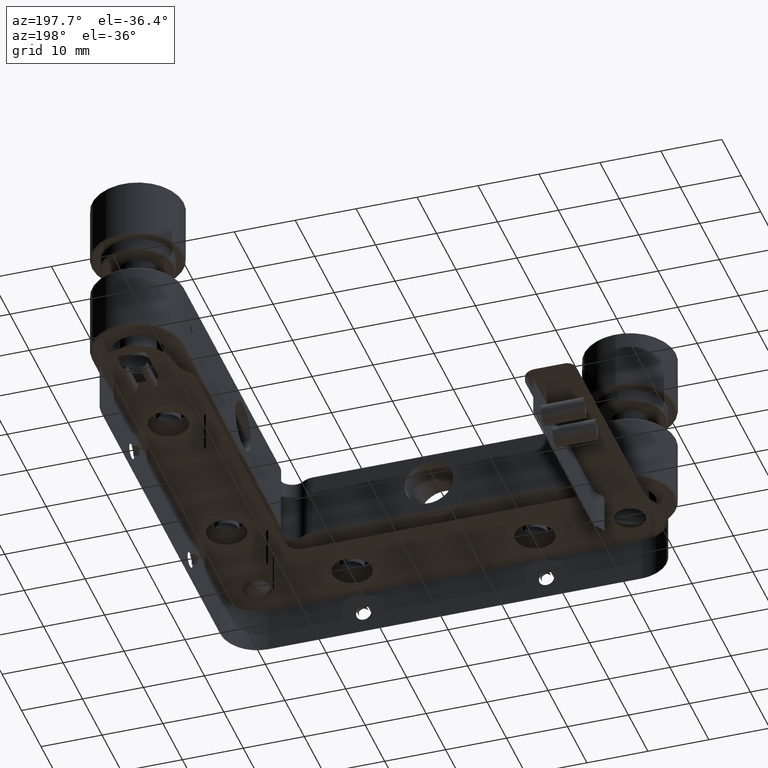
[diagram: clean part render]
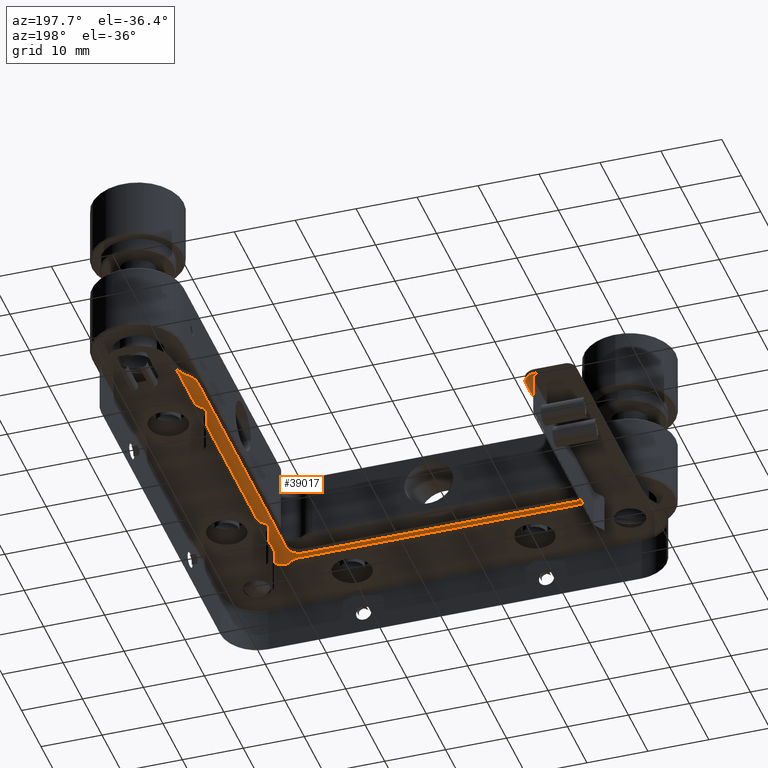
[diagram: same view with one face highlighted and labeled with its STEP entity id]
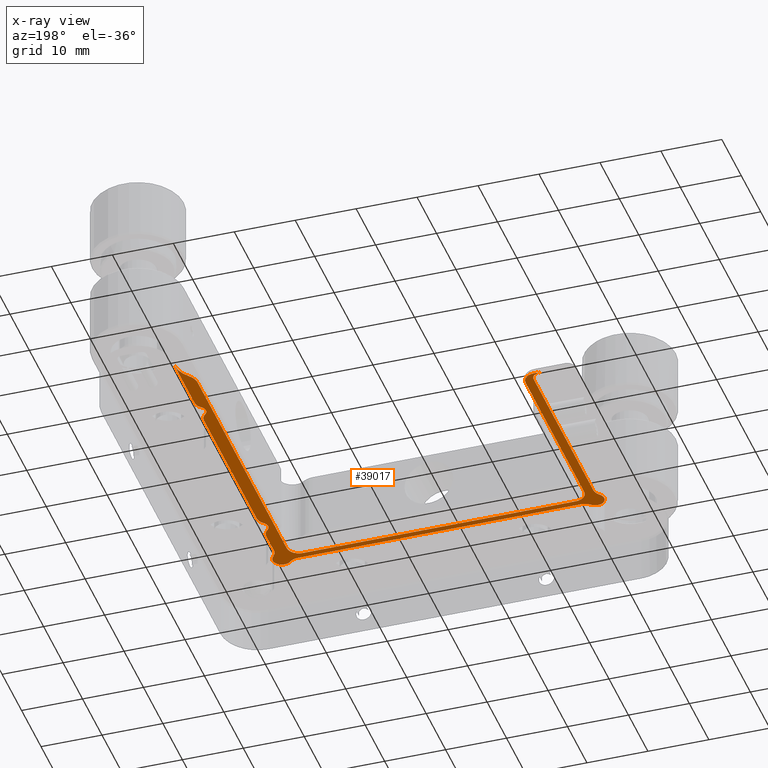
[diagram: x-ray of the same camera — body ghosted, the highlighted face saturated]
A machine part, auxiliary view. The second image highlights one B-rep face of the part: STEP entity #39017.
The next image is the same camera in x-ray: the body ghosted, the highlighted face saturated — about 0% of this face is hidden behind the body in this view.
In plain terms, the highlighted planar face has unit normal (-0, 0, -1).
Its self-contained STEP definition (entity closure, byte-faithful):
#29 = B_SPLINE_CURVE_WITH_KNOTS ( 'NONE', 3,
 ( #162, #477, #4579, #18782, #18475, #62359 ),
 .UNSPECIFIED., .F., .F.,
 ( 4, 2, 4 ),
 ( 0.000000000000000000, 0.5000000000000000000, 1.000000000000000000 ),
 .UNSPECIFIED. ) ;
#162 = CARTESIAN_POINT ( 'NONE',  ( 21.77939825008785135, 25.06279961275375001, 32.24832674495515050 ) ) ;
#322 = CARTESIAN_POINT ( 'NONE',  ( 22.41488369862165086, -17.27094332574434787, 32.24832674495515050 ) ) ;
#324 = VERTEX_POINT ( 'NONE', #17163 ) ;
#345 = CARTESIAN_POINT ( 'NONE',  ( 23.90104600308223937, -25.99114683970996964, 32.24832674495515761 ) ) ;
#477 = CARTESIAN_POINT ( 'NONE',  ( 21.52597599420079888, 24.78607973988354374, 32.24832674495515050 ) ) ;
#650 = CARTESIAN_POINT ( 'NONE',  ( 22.40438893212653682, -26.73453009326794572, 32.24832674495515761 ) ) ;
#757 = CARTESIAN_POINT ( 'NONE',  ( 22.02980462140028806, -15.98034530155659283, 32.24832674495515050 ) ) ;
#1380 = CARTESIAN_POINT ( 'NONE',  ( 20.99180677554469909, -22.99535366685473647, 32.24832674495515050 ) ) ;
#1392 = CARTESIAN_POINT ( 'NONE',  ( 23.09166128158614839, 28.36644784080030135, 32.24832674495515050 ) ) ;
#1668 = VECTOR ( 'NONE', #56739, 1000.000000000000000 ) ;
#1732 = VERTEX_POINT ( 'NONE', #55852 ) ;
#1845 = CARTESIAN_POINT ( 'NONE',  ( -27.35708614729145083, -25.98082061314709890, 32.24832674495515761 ) ) ;
#1879 = VERTEX_POINT ( 'NONE', #2510 ) ;
#1905 = B_SPLINE_CURVE_WITH_KNOTS ( 'NONE', 3,
 ( #5569, #54805, #40281, #11525, #48840, #25755 ),
 .UNSPECIFIED., .F., .F.,
 ( 4, 2, 4 ),
 ( 0.000000000000000000, 0.5000000000000000000, 1.000000000000000000 ),
 .UNSPECIFIED. ) ;
#2055 = AXIS2_PLACEMENT_3D ( 'NONE', #40431, #31268, #11669 ) ;
#2088 = CARTESIAN_POINT ( 'NONE',  ( 20.99180677554469909, -24.73355427905559978, 32.24832674495515050 ) ) ;
#2101 = VERTEX_POINT ( 'NONE', #35657 ) ;
#2246 = CARTESIAN_POINT ( 'NONE',  ( 22.02980462140028095, 15.31323674344544727, 32.24832674495515761 ) ) ;
#2510 = CARTESIAN_POINT ( 'NONE',  ( 20.99180677554469909, -22.73355427905559623, 32.24832674495515050 ) ) ;
#2741 = VERTEX_POINT ( 'NONE', #24152 ) ;
#2880 = CARTESIAN_POINT ( 'NONE',  ( 23.09180677554469696, -14.17898538855752300, 32.24832674495515761 ) ) ;
#2927 = EDGE_CURVE ( 'NONE', #56410, #37726, #13922, .T. ) ;
#3036 = CARTESIAN_POINT ( 'NONE',  ( -25.80819322445529806, -24.73355427905559978, 32.24832674495515050 ) ) ;
#3519 = CARTESIAN_POINT ( 'NONE',  ( -29.30819322445523056, -23.04592957015566057, 32.24832674495515050 ) ) ;
#3522 = CARTESIAN_POINT ( 'NONE',  ( 20.99180677554474883, 23.03665832535904912, 32.24832674495515050 ) ) ;
#4192 = ORIENTED_EDGE ( 'NONE', *, *, #54248, .F. ) ;
#4295 = EDGE_CURVE ( 'NONE', #49112, #18189, #14038, .T. ) ;
#4496 = CARTESIAN_POINT ( 'NONE',  ( 23.66323534697329833, -24.18377296071994920, 32.24832674495515050 ) ) ;
#4579 = CARTESIAN_POINT ( 'NONE',  ( 21.33150969745302206, 24.47332293406695314, 32.24832674495515761 ) ) ;
#4766 = VERTEX_POINT ( 'NONE', #4496 ) ;
#4918 = EDGE_CURVE ( 'NONE', #45766, #26637, #55200, .T. ) ;
#4966 = B_SPLINE_CURVE_WITH_KNOTS ( 'NONE', 3,
 ( #49800, #30221, #6221, #6530, #25483, #20737 ),
 .UNSPECIFIED., .F., .F.,
 ( 4, 2, 4 ),
 ( 0.000000000000000000, 0.2500000000000000000, 0.5000000000000000000 ),
 .UNSPECIFIED. ) ;
#5106 = DIRECTION ( 'NONE',  ( 1.000000000000000000, -5.688755477613120478E-16, 0.000000000000000000 ) ) ;
#5559 = CARTESIAN_POINT ( 'NONE',  ( -27.75841190611964748, -26.30498285048415141, 32.24832674495515050 ) ) ;
#5569 = CARTESIAN_POINT ( 'NONE',  ( 23.09180677554484973, 18.10365724233514939, 32.24832674495515050 ) ) ;
#5816 = VECTOR ( 'NONE', #31126, 1000.000000000000000 ) ;
#6153 = VERTEX_POINT ( 'NONE', #45804 ) ;
#6221 = CARTESIAN_POINT ( 'NONE',  ( 22.17514535375099882, 16.34167843245477059, 32.24832674495515761 ) ) ;
#6345 = CARTESIAN_POINT ( 'NONE',  ( 22.17514535375092777, 14.99121300943414603, 32.24832674495515050 ) ) ;
#6530 = CARTESIAN_POINT ( 'NONE',  ( 22.02980462140031648, 16.01965469844348888, 32.24832674495515050 ) ) ;
#6639 = PLANE ( 'NONE',  #2055 ) ;
#6655 = CARTESIAN_POINT ( 'NONE',  ( 21.99180677554474173, 15.48979407663652097, 32.24832674495515761 ) ) ;
#6964 = CARTESIAN_POINT ( 'NONE',  ( 22.41488369862165086, 14.72905667425562015, 32.24832674495515050 ) ) ;
#7068 = CARTESIAN_POINT ( 'NONE',  ( -30.05276475389890578, 9.177125303475817120, 32.24832674495520024 ) ) ;
#7119 = LINE ( 'NONE', #2088, #5816 ) ;
#7315 = CARTESIAN_POINT ( 'NONE',  ( -29.30819322445524833, -22.78406453627239614, 32.24832674495515050 ) ) ;
#7536 = VERTEX_POINT ( 'NONE', #48518 ) ;
#7618 = EDGE_CURVE ( 'NONE', #21031, #45766, #37395, .T. ) ;
#7839 = VECTOR ( 'NONE', #18584, 1000.000000000000000 ) ;
#7907 = CARTESIAN_POINT ( 'NONE',  ( 22.41488369862165086, -15.39616523236684920, 32.24832674495515050 ) ) ;
#8232 = ORIENTED_EDGE ( 'NONE', *, *, #44712, .T. ) ;
#8558 = ORIENTED_EDGE ( 'NONE', *, *, #49507, .F. ) ;
#8838 = ORIENTED_EDGE ( 'NONE', *, *, #41916, .F. ) ;
#9175 = VERTEX_POINT ( 'NONE', #25838 ) ;
#9346 = CARTESIAN_POINT ( 'NONE',  ( 23.09180677554484973, -2.233554279055594449, 32.24832674495515050 ) ) ;
#9417 = B_SPLINE_CURVE_WITH_KNOTS ( 'NONE', 3,
 ( #7315, #3519, #36676, #27812, #46160, #22763 ),
 .UNSPECIFIED., .F., .F.,
 ( 4, 2, 4 ),
 ( 0.000000000000000000, 0.5000000000000000000, 1.000000000000000000 ),
 .UNSPECIFIED. ) ;
#9586 = CARTESIAN_POINT ( 'NONE',  ( 23.09180677554475025, -2.233554279055594449, 32.24832674495515050 ) ) ;
#9698 = CARTESIAN_POINT ( 'NONE',  ( 23.14126004236304368, -23.29753976268787596, 32.24832674495515050 ) ) ;
#9742 = DIRECTION ( 'NONE',  ( 2.175939046235025056E-22, -1.717878100716150015E-22, 1.000000000000000000 ) ) ;
#9792 = CARTESIAN_POINT ( 'NONE',  ( 24.09278258975705000, -25.04613643563743253, 32.24832674495515761 ) ) ;
#9966 = CARTESIAN_POINT ( 'NONE',  ( -30.21981730979874214, -25.81948281482086571, 32.24832674495516471 ) ) ;
#9991 = CARTESIAN_POINT ( 'NONE',  ( 23.09180677554475025, 13.22923419955359847, 32.24832674495515050 ) ) ;
#10106 = CARTESIAN_POINT ( 'NONE',  ( 22.79453173767460328, -26.73253941327520167, 32.24832674495515761 ) ) ;
#10227 = CARTESIAN_POINT ( 'NONE',  ( 21.77939825008785135, 25.06279961275375001, 32.24832674495515050 ) ) ;
#10416 = CARTESIAN_POINT ( 'NONE',  ( 23.79040505460807964, -26.15627634355186615, 32.24832674495515761 ) ) ;
#10648 = CARTESIAN_POINT ( 'NONE',  ( -29.30819322445529806, -2.233554279055594449, 32.24832674495515050 ) ) ;
#10845 = CARTESIAN_POINT ( 'NONE',  ( 23.08264050750572594, 27.76082371007115412, 32.24832674495515050 ) ) ;
#10859 = CARTESIAN_POINT ( 'NONE',  ( -29.49751364192385950, 8.621874191500774387, 32.24832674495519313 ) ) ;
#10880 = ORIENTED_EDGE ( 'NONE', *, *, #26611, .T. ) ;
#10987 = CARTESIAN_POINT ( 'NONE',  ( -26.87217870808963838, -25.78300754587388965, 32.24832674495515050 ) ) ;
#11037 = CARTESIAN_POINT ( 'NONE',  ( 23.34939933619907393, -26.54279350659314574, 32.24832674495515761 ) ) ;
#11293 = CARTESIAN_POINT ( 'NONE',  ( -26.35870348167209798, -25.73355427905559978, 32.24832674495515050 ) ) ;
#11525 = CARTESIAN_POINT ( 'NONE',  ( 22.79846505041491156, 17.02328490391873572, 32.24832674495515050 ) ) ;
#11545 = ORIENTED_EDGE ( 'NONE', *, *, #4295, .F. ) ;
#11669 = DIRECTION ( 'NONE',  ( -1.000000000000000000, 0.000000000000000000, 2.175939046235025056E-22 ) ) ;
#11697 = CARTESIAN_POINT ( 'NONE',  ( 23.03101022217582639, -14.46147712166324517, 32.24832674495515761 ) ) ;
#12259 = AXIS2_PLACEMENT_3D ( 'NONE', #27535, #9742, #13312 ) ;
#12349 = VECTOR ( 'NONE', #42385, 1000.000000000000000 ) ;
#12454 = CARTESIAN_POINT ( 'NONE',  ( -30.12367448557866467, -24.48718516824706626, 32.24832674495515050 ) ) ;
#12669 = ORIENTED_EDGE ( 'NONE', *, *, #7618, .F. ) ;
#12962 = AXIS2_PLACEMENT_3D ( 'NONE', #20004, #34223, #52866 ) ;
#12967 = VERTEX_POINT ( 'NONE', #61779 ) ;
#13053 = ORIENTED_EDGE ( 'NONE', *, *, #2927, .F. ) ;
#13282 = CARTESIAN_POINT ( 'NONE',  ( 22.41488369862165086, -15.39616523236684920, 32.24832674495515050 ) ) ;
#13312 = DIRECTION ( 'NONE',  ( -1.000000000000000000, 0.000000000000000000, 0.000000000000000000 ) ) ;
#13320 = CARTESIAN_POINT ( 'NONE',  ( 22.41488369862165086, 14.72905667425562015, 32.24832674495515050 ) ) ;
#13329 = VERTEX_POINT ( 'NONE', #28297 ) ;
#13526 = CARTESIAN_POINT ( 'NONE',  ( 22.62684058368262185, -17.45792229695026521, 32.24832674495515761 ) ) ;
#13696 = DIRECTION ( 'NONE',  ( -3.737998036020350053E-44, -1.000000000000000000, -1.717878100716154952E-22 ) ) ;
#13831 = CARTESIAN_POINT ( 'NONE',  ( -1.508193224455240067, -25.73355427905559978, 32.24832674495515050 ) ) ;
#13922 = B_SPLINE_CURVE_WITH_KNOTS ( 'NONE', 3,
 ( #59179, #25710, #26652, #10859, #35190, #15606, #7068, #35497, #40866, #31073 ),
 .UNSPECIFIED., .F., .F.,
 ( 4, 2, 2, 2, 4 ),
 ( 0.000000000000000000, 0.2500000000000000000, 0.5000000000000000000, 0.7500000000000000000, 1.000000000000000000 ),
 .UNSPECIFIED. ) ;
#13984 = VECTOR ( 'NONE', #37416, 1000.000000000000000 ) ;
#14027 = CARTESIAN_POINT ( 'NONE',  ( 22.17514535375095264, -15.65832156754531290, 32.24832674495515761 ) ) ;
#14038 = LINE ( 'NONE', #28561, #13984 ) ;
#14087 = CARTESIAN_POINT ( 'NONE',  ( -27.75841190611964748, -26.30498285048415141, 32.24832674495515050 ) ) ;
#14151 = CARTESIAN_POINT ( 'NONE',  ( 22.79846505041489735, -17.69039346202988838, 32.24832674495515761 ) ) ;
#14446 = CARTESIAN_POINT ( 'NONE',  ( 23.66323534697329833, -24.18377296071994920, 32.24832674495515050 ) ) ;
#14824 = CARTESIAN_POINT ( 'NONE',  ( 21.99180677554475594, -16.33355427905559765, 32.24832674495515761 ) ) ;
#15197 = CARTESIAN_POINT ( 'NONE',  ( 20.14231703276155017, -25.73355427905559978, 32.24832674495515050 ) ) ;
#15330 = CARTESIAN_POINT ( 'NONE',  ( -29.65963222836269964, -26.50282431729444710, 32.24832674495515761 ) ) ;
#15340 = CARTESIAN_POINT ( 'NONE',  ( -27.80819322445530162, -22.73355427905559623, 32.24832674495515050 ) ) ;
#15377 = CARTESIAN_POINT ( 'NONE',  ( 23.09180677554476091, -23.04556344734839257, 32.24832674495515050 ) ) ;
#15606 = CARTESIAN_POINT ( 'NONE',  ( -29.88637314449287175, 9.065945984541700753, 32.24832674495519313 ) ) ;
#15818 = CARTESIAN_POINT ( 'NONE',  ( -29.80819322445524833, 9.366445720944430064, 32.24832674495515050 ) ) ;
#16044 = CARTESIAN_POINT ( 'NONE',  ( -26.62020239275015498, -25.73355427905559267, 32.24832674495515050 ) ) ;
#16516 = CARTESIAN_POINT ( 'NONE',  ( 20.22090021549453098, -24.33288796385195241, 32.24832674495515050 ) ) ;
#17163 = CARTESIAN_POINT ( 'NONE',  ( 21.77939825008785135, 25.06279961275375001, 32.24832674495515050 ) ) ;
#17539 = ORIENTED_EDGE ( 'NONE', *, *, #56095, .F. ) ;
#17750 = CARTESIAN_POINT ( 'NONE',  ( 23.09166128158614839, 28.36644784080030135, 32.24832674495515050 ) ) ;
#18021 = B_SPLINE_CURVE_WITH_KNOTS ( 'NONE', 3,
 ( #14824, #44197, #29353, #29666, #57788, #322 ),
 .UNSPECIFIED., .F., .F.,
 ( 4, 2, 4 ),
 ( 0.5000000000000000000, 0.7500000000000000000, 1.000000000000000000 ),
 .UNSPECIFIED. ) ;
#18030 = EDGE_CURVE ( 'NONE', #2101, #24633, #1905, .T. ) ;
#18189 = VERTEX_POINT ( 'NONE', #15340 ) ;
#18475 = CARTESIAN_POINT ( 'NONE',  ( 20.99180677554476304, 23.41152101258948548, 32.24832674495515050 ) ) ;
#18584 = DIRECTION ( 'NONE',  ( -1.000000000000000000, 0.000000000000000000, 2.175939046235025056E-22 ) ) ;
#18688 = CARTESIAN_POINT ( 'NONE',  ( -26.35870348167209798, -25.73355427905559978, 32.24832674495515050 ) ) ;
#18763 = CARTESIAN_POINT ( 'NONE',  ( 21.99180677554474883, -16.15690263474766653, 32.24832674495515761 ) ) ;
#18782 = CARTESIAN_POINT ( 'NONE',  ( 21.05974735992640134, 23.77382647177715214, 32.24832674495515050 ) ) ;
#19010 = CIRCLE ( 'NONE', #12962, 1.999999999999998224 ) ;
#19163 = EDGE_CURVE ( 'NONE', #9175, #21031, #39460, .T. ) ;
#19199 = LINE ( 'NONE', #13831, #7839 ) ;
#19268 = B_SPLINE_CURVE_WITH_KNOTS ( 'NONE', 3,
 ( #14446, #48251, #24236, #9698, #15377, #58341 ),
 .UNSPECIFIED., .F., .F.,
 ( 4, 2, 4 ),
 ( 0.000000000000000000, 0.5000000000000000000, 1.000000000000000000 ),
 .UNSPECIFIED. ) ;
#19275 = CARTESIAN_POINT ( 'NONE',  ( 23.79975866703898646, -24.32311149078315182, 32.24832674495515761 ) ) ;
#19370 = EDGE_CURVE ( 'NONE', #44123, #2101, #37330, .T. ) ;
#19619 = CARTESIAN_POINT ( 'NONE',  ( 21.99180677554475594, 15.66644572094443788, 32.24832674495515761 ) ) ;
#19710 = CARTESIAN_POINT ( 'NONE',  ( 22.51537779034606501, 26.03116704319188202, 32.24832674495515050 ) ) ;
#20004 = CARTESIAN_POINT ( 'NONE',  ( -25.80819322445529806, -22.73355427905559623, 32.24832674495515050 ) ) ;
#20737 = CARTESIAN_POINT ( 'NONE',  ( 21.99180677554475594, 15.66644572094443788, 32.24832674495515761 ) ) ;
#20829 = CARTESIAN_POINT ( 'NONE',  ( 21.68136398727225611, -26.44150617054988928, 32.24832674495515761 ) ) ;
#21031 = VERTEX_POINT ( 'NONE', #9991 ) ;
#21549 = VECTOR ( 'NONE', #5106, 1000.000000000000000 ) ;
#21875 = EDGE_CURVE ( 'NONE', #324, #44123, #49199, .T. ) ;
#22124 = CARTESIAN_POINT ( 'NONE',  ( 22.79846505041477300, -14.97671509608128559, 32.24832674495515050 ) ) ;
#22158 = ORIENTED_EDGE ( 'NONE', *, *, #58880, .F. ) ;
#22763 = CARTESIAN_POINT ( 'NONE',  ( -29.87962179588384970, -24.18377296071994920, 32.24832674495515050 ) ) ;
#23010 = VERTEX_POINT ( 'NONE', #15818 ) ;
#23042 = CARTESIAN_POINT ( 'NONE',  ( 21.54202545720904993, -26.30498285048415141, 32.24832674495515050 ) ) ;
#23109 = CARTESIAN_POINT ( 'NONE',  ( 21.99180677554475594, 15.66644572094443788, 32.24832674495515761 ) ) ;
#23200 = ORIENTED_EDGE ( 'NONE', *, *, #21875, .F. ) ;
#23937 = CARTESIAN_POINT ( 'NONE',  ( 23.09180677554484618, -18.48812316955368118, 32.24832674495515761 ) ) ;
#24055 = CARTESIAN_POINT ( 'NONE',  ( 21.35524052072452506, -26.12197173607405887, 32.24832674495515050 ) ) ;
#24152 = CARTESIAN_POINT ( 'NONE',  ( 20.14231703276155017, -25.73355427905559978, 32.24832674495515050 ) ) ;
#24236 = CARTESIAN_POINT ( 'NONE',  ( 23.33907310963618187, -23.78244720189380246, 32.24832674495515761 ) ) ;
#24505 = CARTESIAN_POINT ( 'NONE',  ( -30.30819494057204366, -25.23355428089001151, 32.24832674495515761 ) ) ;
#24633 = VERTEX_POINT ( 'NONE', #59345 ) ;
#24643 = CARTESIAN_POINT ( 'NONE',  ( 24.09079190976430240, -25.43627924118550609, 32.24832674495515761 ) ) ;
#24681 = CARTESIAN_POINT ( 'NONE',  ( 21.14064736124817756, -25.98094881241615539, 32.24832674495515050 ) ) ;
#25111 = EDGE_CURVE ( 'NONE', #4766, #41861, #19268, .T. ) ;
#25483 = CARTESIAN_POINT ( 'NONE',  ( 21.99180677554475949, 15.84309736525241519, 32.24832674495515761 ) ) ;
#25710 = CARTESIAN_POINT ( 'NONE',  ( -29.30819322445524833, 8.062795261793791468, 32.24832674495520735 ) ) ;
#25755 = CARTESIAN_POINT ( 'NONE',  ( 22.41488369862175034, 16.60383476763319877, 32.24832674495515050 ) ) ;
#25817 = EDGE_CURVE ( 'NONE', #24633, #29679, #4966, .T. ) ;
#25838 = CARTESIAN_POINT ( 'NONE',  ( 22.41488369862165086, 14.72905667425562015, 32.24832674495515050 ) ) ;
#26009 = VECTOR ( 'NONE', #34041, 1000.000000000000000 ) ;
#26373 = CARTESIAN_POINT ( 'NONE',  ( -30.27017226299626529, -24.84602997168553529, 32.24832674495515761 ) ) ;
#26611 = EDGE_CURVE ( 'NONE', #7536, #43689, #9417, .T. ) ;
#26637 = VERTEX_POINT ( 'NONE', #13282 ) ;
#26652 = CARTESIAN_POINT ( 'NONE',  ( -29.34723420945278249, 8.259067547483347482, 32.24832674495520024 ) ) ;
#26800 = CARTESIAN_POINT ( 'NONE',  ( -30.80819322445525188, 9.366445720944430064, 32.24832674495515050 ) ) ;
#27234 = CARTESIAN_POINT ( 'NONE',  ( 23.09180677554475025, 13.51187683044630106, 32.24832674495515761 ) ) ;
#27535 = CARTESIAN_POINT ( 'NONE',  ( -29.80819322445524833, 7.366445720944430064, 32.24832674495515050 ) ) ;
#27812 = CARTESIAN_POINT ( 'NONE',  ( -29.55558775781726411, -23.78239486476050857, 32.24832674495515050 ) ) ;
#28297 = CARTESIAN_POINT ( 'NONE',  ( 22.41488369862165086, -17.27094332574434787, 32.24832674495515050 ) ) ;
#28349 = ORIENTED_EDGE ( 'NONE', *, *, #56524, .F. ) ;
#28550 = CARTESIAN_POINT ( 'NONE',  ( 22.28241064545861150, -15.51302708937055463, 32.24832674495515761 ) ) ;
#28561 = CARTESIAN_POINT ( 'NONE',  ( -27.80819322445525188, 34.36644572094444783, 32.24832674495515050 ) ) ;
#29103 = CARTESIAN_POINT ( 'NONE',  ( 20.40418206664269363, -25.73355427905559267, 32.24832674495515050 ) ) ;
#29353 = CARTESIAN_POINT ( 'NONE',  ( 22.02980462140029871, -16.68676325655460957, 32.24832674495515761 ) ) ;
#29376 = CARTESIAN_POINT ( 'NONE',  ( 21.54202545720904993, -26.30498285048415141, 32.24832674495515050 ) ) ;
#29476 = CARTESIAN_POINT ( 'NONE',  ( -29.87962179588384970, -24.18377296071994920, 32.24832674495515050 ) ) ;
#29500 = CARTESIAN_POINT ( 'NONE',  ( 22.96252748057307258, 27.15700227710006942, 32.24832674495514340 ) ) ;
#29550 = LINE ( 'NONE', #44386, #32414 ) ;
#29666 = CARTESIAN_POINT ( 'NONE',  ( 22.17514535375095619, -17.00878699056589483, 32.24832674495515050 ) ) ;
#29679 = VERTEX_POINT ( 'NONE', #23109 ) ;
#29798 = CARTESIAN_POINT ( 'NONE',  ( 20.99180677554469909, -22.73355427905559623, 32.24832674495515050 ) ) ;
#29860 = CARTESIAN_POINT ( 'NONE',  ( -30.30819322427598195, -25.52680299240950745, 32.24832674495515761 ) ) ;
#29925 = EDGE_CURVE ( 'NONE', #37726, #23010, #48684, .T. ) ;
#30221 = CARTESIAN_POINT ( 'NONE',  ( 22.28241064545867900, 16.48697291062952885, 32.24832674495515761 ) ) ;
#30473 = ORIENTED_EDGE ( 'NONE', *, *, #36922, .F. ) ;
#30776 = ORIENTED_EDGE ( 'NONE', *, *, #55459, .F. ) ;
#31073 = CARTESIAN_POINT ( 'NONE',  ( -30.80819322445525188, 9.366445720944430064, 32.24832674495515050 ) ) ;
#31126 = DIRECTION ( 'NONE',  ( 6.636691803283510694E-16, 1.000000000000000000, 0.000000000000000000 ) ) ;
#31268 = DIRECTION ( 'NONE',  ( -2.175939046235025056E-22, 1.717878100716154952E-22, -1.000000000000000000 ) ) ;
#31785 = EDGE_CURVE ( 'NONE', #2741, #48464, #36275, .T. ) ;
#32050 = CARTESIAN_POINT ( 'NONE',  ( 23.09180677554469696, -13.89634275766482041, 32.24832674495515050 ) ) ;
#32414 = VECTOR ( 'NONE', #44698, 1000.000000000000000 ) ;
#32490 = CARTESIAN_POINT ( 'NONE',  ( 22.41488369862165086, -17.27094332574434787, 32.24832674495515050 ) ) ;
#32599 = CARTESIAN_POINT ( 'NONE',  ( 23.09180677554475025, 13.22923419955359847, 32.24832674495515050 ) ) ;
#33214 = CARTESIAN_POINT ( 'NONE',  ( 22.62684058368256856, 14.54207770304969571, 32.24832674495515761 ) ) ;
#33975 = CARTESIAN_POINT ( 'NONE',  ( -28.23878254407336641, -26.65192175062729163, 32.24832674495515761 ) ) ;
#34041 = DIRECTION ( 'NONE',  ( 3.737998036020350053E-44, 1.000000000000000000, 1.717878100716154952E-22 ) ) ;
#34223 = DIRECTION ( 'NONE',  ( 2.175939046235025056E-22, -1.717878100716150015E-22, 1.000000000000000000 ) ) ;
#35041 = VERTEX_POINT ( 'NONE', #3036 ) ;
#35190 = CARTESIAN_POINT ( 'NONE',  ( -29.60869296085798297, 8.788265800906803094, 32.24832674495520024 ) ) ;
#35366 = CARTESIAN_POINT ( 'NONE',  ( 21.84761394113992239, -26.55045627544809150, 32.24832674495516471 ) ) ;
#35497 = CARTESIAN_POINT ( 'NONE',  ( -30.41557139791633091, 9.327404735946903003, 32.24832674495520024 ) ) ;
#35533 = EDGE_CURVE ( 'NONE', #324, #55415, #29, .T. ) ;
#35657 = CARTESIAN_POINT ( 'NONE',  ( 23.09180677554484973, 18.10365724233514939, 32.24832674495515050 ) ) ;
#35658 = ORIENTED_EDGE ( 'NONE', *, *, #60891, .F. ) ;
#35722 = CARTESIAN_POINT ( 'NONE',  ( 23.09180677554469696, -13.89634275766482041, 32.24832674495515050 ) ) ;
#35786 = CARTESIAN_POINT ( 'NONE',  ( 20.93975212888133797, -23.25705004777415752, 32.24832674495515050 ) ) ;
#36275 = B_SPLINE_CURVE_WITH_KNOTS ( 'NONE', 3,
 ( #15197, #29103, #58470, #24681, #24055, #48999 ),
 .UNSPECIFIED., .F., .F.,
 ( 4, 2, 4 ),
 ( 0.000000000000000000, 0.5000000000000000000, 1.000000000000000000 ),
 .UNSPECIFIED. ) ;
#36651 = CARTESIAN_POINT ( 'NONE',  ( 22.62684058368252238, -15.20918626116089989, 32.24832674495515761 ) ) ;
#36676 = CARTESIAN_POINT ( 'NONE',  ( -29.35751829200301088, -23.29759209982117696, 32.24832674495515761 ) ) ;
#36922 = EDGE_CURVE ( 'NONE', #1732, #13329, #18021, .T. ) ;
#37330 = LINE ( 'NONE', #56600, #12349 ) ;
#37395 = LINE ( 'NONE', #9586, #48280 ) ;
#37416 = DIRECTION ( 'NONE',  ( -6.636691803283510694E-16, -1.000000000000000000, 0.000000000000000000 ) ) ;
#37469 = LINE ( 'NONE', #9346, #1668 ) ;
#37726 = VERTEX_POINT ( 'NONE', #26800 ) ;
#38254 = CARTESIAN_POINT ( 'NONE',  ( -38.10819322445534851, 9.366445720944430064, 32.24832674495515050 ) ) ;
#38539 = CARTESIAN_POINT ( 'NONE',  ( 23.90870877193719934, -24.48936144465083231, 32.24832674495515761 ) ) ;
#38635 = ORIENTED_EDGE ( 'NONE', *, *, #42340, .F. ) ;
#38764 = ORIENTED_EDGE ( 'NONE', *, *, #19370, .F. ) ;
#39017 = ADVANCED_FACE ( 'NONE', ( #49911 ), #6639, .F. ) ;
#39110 = CARTESIAN_POINT ( 'NONE',  ( -27.75841190611964748, -26.30498285048415141, 32.24832674495515050 ) ) ;
#39314 = ORIENTED_EDGE ( 'NONE', *, *, #18030, .F. ) ;
#39460 = B_SPLINE_CURVE_WITH_KNOTS ( 'NONE', 3,
 ( #13320, #33214, #61643, #55978, #27234, #32599 ),
 .UNSPECIFIED., .F., .F.,
 ( 4, 2, 4 ),
 ( 0.000000000000000000, 0.5000000000000000000, 1.000000000000000000 ),
 .UNSPECIFIED. ) ;
#39533 = VERTEX_POINT ( 'NONE', #51461 ) ;
#39580 = CARTESIAN_POINT ( 'NONE',  ( 20.73937955225322227, -23.74079223979738629, 32.24832674495515050 ) ) ;
#40043 = CARTESIAN_POINT ( 'NONE',  ( -27.57136545334717326, -26.12171550348810811, 32.24832674495515050 ) ) ;
#40178 = ORIENTED_EDGE ( 'NONE', *, *, #53102, .F. ) ;
#40281 = CARTESIAN_POINT ( 'NONE',  ( 23.03101022217597560, 17.53852287833678147, 32.24832674495515761 ) ) ;
#40302 = ORIENTED_EDGE ( 'NONE', *, *, #29925, .F. ) ;
#40350 = B_SPLINE_CURVE_WITH_KNOTS ( 'NONE', 3,
 ( #39110, #40043, #1845, #10987, #16044, #11293 ),
 .UNSPECIFIED., .F., .F.,
 ( 4, 2, 4 ),
 ( 0.000000000000000000, 0.5000000000000000000, 1.000000000000000000 ),
 .UNSPECIFIED. ) ;
#40431 = CARTESIAN_POINT ( 'NONE',  ( -1.508193224455240067, -2.233554279055594449, 32.24832674495515050 ) ) ;
#40525 = CARTESIAN_POINT ( 'NONE',  ( 18.99180677554470265, -24.73355427905559978, 32.24832674495515050 ) ) ;
#40740 = ORIENTED_EDGE ( 'NONE', *, *, #25111, .T. ) ;
#40866 = CARTESIAN_POINT ( 'NONE',  ( -30.61184368360589758, 9.366445720944430064, 32.24832674495520024 ) ) ;
#41746 = EDGE_CURVE ( 'NONE', #35041, #12967, #29550, .T. ) ;
#41861 = VERTEX_POINT ( 'NONE', #44076 ) ;
#41904 = CARTESIAN_POINT ( 'NONE',  ( -27.80819322445525188, 7.366445720944430064, 32.24832674495515050 ) ) ;
#41916 = EDGE_CURVE ( 'NONE', #49399, #39533, #50715, .T. ) ;
#41970 = ORIENTED_EDGE ( 'NONE', *, *, #31785, .T. ) ;
#42277 = CARTESIAN_POINT ( 'NONE',  ( 23.03101022217597205, -18.20563143644795900, 32.24832674495515050 ) ) ;
#42340 = EDGE_CURVE ( 'NONE', #39533, #43689, #61332, .T. ) ;
#42385 = DIRECTION ( 'NONE',  ( -3.737998036020350053E-44, -1.000000000000000000, -1.717878100716154952E-22 ) ) ;
#42405 = ORIENTED_EDGE ( 'NONE', *, *, #44194, .T. ) ;
#42902 = EDGE_LOOP ( 'NONE', ( #12669, #47951, #40178, #42958, #39314, #38764, #23200, #58352, #4192, #43513, #53048, #22158, #11545, #42405, #40302, #13053, #28349, #10880, #38635, #8838, #8232, #17539, #41970, #30776, #40740, #8558, #56693, #30473, #35658, #60429 ) ) ;
#42958 = ORIENTED_EDGE ( 'NONE', *, *, #25817, .F. ) ;
#43285 = CARTESIAN_POINT ( 'NONE',  ( 23.66323534697329833, -24.18377296071994920, 32.24832674495515050 ) ) ;
#43513 = ORIENTED_EDGE ( 'NONE', *, *, #61843, .F. ) ;
#43689 = VERTEX_POINT ( 'NONE', #29476 ) ;
#43772 = CARTESIAN_POINT ( 'NONE',  ( -28.81486945303820946, -26.76193585291651189, 32.24832674495515050 ) ) ;
#44076 = CARTESIAN_POINT ( 'NONE',  ( 23.09180677554469696, -22.78406453627239614, 32.24832674495515050 ) ) ;
#44123 = VERTEX_POINT ( 'NONE', #17750 ) ;
#44194 = EDGE_CURVE ( 'NONE', #49112, #23010, #58656, .T. ) ;
#44197 = CARTESIAN_POINT ( 'NONE',  ( 21.99180677554474883, -16.51020592336354298, 32.24832674495515761 ) ) ;
#44325 = CARTESIAN_POINT ( 'NONE',  ( 19.25360616334385000, -24.73355427905558912, 32.24832674495515050 ) ) ;
#44386 = CARTESIAN_POINT ( 'NONE',  ( -27.80819322445530162, -24.73355427905559978, 32.24832674495515050 ) ) ;
#44528 = CARTESIAN_POINT ( 'NONE',  ( 23.51452884004097044, -26.43215255811897890, 32.24832674495515761 ) ) ;
#44667 = B_SPLINE_CURVE_WITH_KNOTS ( 'NONE', 3,
 ( #32490, #13526, #14151, #42277, #23937, #51760 ),
 .UNSPECIFIED., .F., .F.,
 ( 4, 2, 4 ),
 ( 0.000000000000000000, 0.5000000000000000000, 1.000000000000000000 ),
 .UNSPECIFIED. ) ;
#44698 = DIRECTION ( 'NONE',  ( 1.000000000000000000, -5.214787314777930301E-16, 0.000000000000000000 ) ) ;
#44712 = EDGE_CURVE ( 'NONE', #49399, #47327, #40350, .T. ) ;
#45578 = CARTESIAN_POINT ( 'NONE',  ( 20.59114046034106593, -23.96264771900542456, 32.24832674495515050 ) ) ;
#45645 = CARTESIAN_POINT ( 'NONE',  ( -30.30819494057204366, -25.23355428089001151, 32.24832674495515761 ) ) ;
#45766 = VERTEX_POINT ( 'NONE', #32050 ) ;
#45804 = CARTESIAN_POINT ( 'NONE',  ( 23.09180677554479644, -18.77076580044639798, 32.24832674495515050 ) ) ;
#46160 = CARTESIAN_POINT ( 'NONE',  ( -29.69661068147517469, -23.99698802423688093, 32.24832674495515050 ) ) ;
#47206 = CARTESIAN_POINT ( 'NONE',  ( 22.41488369862165086, -15.39616523236684920, 32.24832674495515050 ) ) ;
#47327 = VERTEX_POINT ( 'NONE', #18688 ) ;
#47899 = B_SPLINE_CURVE_WITH_KNOTS ( 'NONE', 3,
 ( #43285, #19275, #38539, #57811, #9792, #24643, #48963, #345, #10416, #44528, #11037, #54008, #10106, #650, #48653, #35366, #20829, #29376 ),
 .UNSPECIFIED., .F., .F.,
 ( 4, 2, 2, 2, 2, 2, 2, 2, 4 ),
 ( 0.000000000000000000, 0.1250000000000000000, 0.2500000000000000000, 0.3750000000000000000, 0.5000000000000000000, 0.6250000000000000000, 0.7500000000000000000, 0.8750000000000000000, 1.000000000000000000 ),
 .UNSPECIFIED. ) ;
#47951 = ORIENTED_EDGE ( 'NONE', *, *, #19163, .F. ) ;
#48200 = CARTESIAN_POINT ( 'NONE',  ( -29.11893150608894842, -26.73002897903318953, 32.24832674495515761 ) ) ;
#48251 = CARTESIAN_POINT ( 'NONE',  ( 23.47996799997578421, -23.99672650794597217, 32.24832674495515050 ) ) ;
#48280 = VECTOR ( 'NONE', #13696, 1000.000000000000000 ) ;
#48464 = VERTEX_POINT ( 'NONE', #23042 ) ;
#48518 = CARTESIAN_POINT ( 'NONE',  ( -29.30819322445524833, -22.78406453627239614, 32.24832674495515050 ) ) ;
#48653 = CARTESIAN_POINT ( 'NONE',  ( 22.20919572310006629, -26.69699632622697649, 32.24832674495515761 ) ) ;
#48684 = LINE ( 'NONE', #38254, #21549 ) ;
#48840 = CARTESIAN_POINT ( 'NONE',  ( 22.62684058368267159, 16.79081373883912676, 32.24832674495515761 ) ) ;
#48963 = CARTESIAN_POINT ( 'NONE',  ( 24.05126822589459934, -25.63107926924428170, 32.24832674495515761 ) ) ;
#48999 = CARTESIAN_POINT ( 'NONE',  ( 21.54202545720904993, -26.30498285048415141, 32.24832674495515050 ) ) ;
#49076 = CARTESIAN_POINT ( 'NONE',  ( 22.18847030240494789, 25.50947848046292776, 32.24832674495515050 ) ) ;
#49112 = VERTEX_POINT ( 'NONE', #41904 ) ;
#49181 = B_SPLINE_CURVE_WITH_KNOTS ( 'NONE', 3,
 ( #19619, #6655, #2246, #6345, #49926, #6964 ),
 .UNSPECIFIED., .F., .F.,
 ( 4, 2, 4 ),
 ( 0.5000000000000000000, 0.7500000000000000000, 1.000000000000000000 ),
 .UNSPECIFIED. ) ;
#49199 = B_SPLINE_CURVE_WITH_KNOTS ( 'NONE', 3,
 ( #10227, #49076, #19710, #29500, #10845, #1392 ),
 .UNSPECIFIED., .F., .F.,
 ( 4, 2, 4 ),
 ( 0.000000000000000000, 0.5000000000000000000, 1.000000000000000000 ),
 .UNSPECIFIED. ) ;
#49399 = VERTEX_POINT ( 'NONE', #14087 ) ;
#49507 = EDGE_CURVE ( 'NONE', #6153, #41861, #37469, .T. ) ;
#49752 = CARTESIAN_POINT ( 'NONE',  ( -29.87962179588384970, -24.18377296071994920, 32.24832674495515050 ) ) ;
#49800 = CARTESIAN_POINT ( 'NONE',  ( 22.41488369862175034, 16.60383476763319877, 32.24832674495515050 ) ) ;
#49911 = FACE_OUTER_BOUND ( 'NONE', #42902, .T. ) ;
#49926 = CARTESIAN_POINT ( 'NONE',  ( 22.28241064545859018, 14.84591853125937888, 32.24832674495515761 ) ) ;
#50060 = CARTESIAN_POINT ( 'NONE',  ( -30.01525238289065101, -24.32220034892023008, 32.24832674495515761 ) ) ;
#50715 = B_SPLINE_CURVE_WITH_KNOTS ( 'NONE', 3,
 ( #5559, #53869, #33975, #43772, #48200, #15330, #54482, #9966, #29860, #24505 ),
 .UNSPECIFIED., .F., .F.,
 ( 4, 2, 2, 2, 4 ),
 ( 0.000000000000000000, 0.1879086907361756653, 0.3758173814723513306, 0.5637260722085269959, 0.7516347629447026613 ),
 .UNSPECIFIED. ) ;
#51461 = CARTESIAN_POINT ( 'NONE',  ( -30.30819494057204366, -25.23355428089001151, 32.24832674495515761 ) ) ;
#51760 = CARTESIAN_POINT ( 'NONE',  ( 23.09180677554479644, -18.77076580044639798, 32.24832674495515050 ) ) ;
#52866 = DIRECTION ( 'NONE',  ( 1.000000000000000000, 0.000000000000000000, 0.000000000000000000 ) ) ;
#53048 = ORIENTED_EDGE ( 'NONE', *, *, #41746, .F. ) ;
#53102 = EDGE_CURVE ( 'NONE', #29679, #9175, #49181, .T. ) ;
#53869 = CARTESIAN_POINT ( 'NONE',  ( -27.96787527214588209, -26.51021419711216254, 32.24832674495515761 ) ) ;
#53936 = LINE ( 'NONE', #10648, #26009 ) ;
#54008 = CARTESIAN_POINT ( 'NONE',  ( 22.98933176573337889, -26.69301572940549860, 32.24832674495515761 ) ) ;
#54248 = EDGE_CURVE ( 'NONE', #1879, #55415, #7119, .T. ) ;
#54482 = CARTESIAN_POINT ( 'NONE',  ( -29.89522196128919518, -26.30796729677411250, 32.24832674495515761 ) ) ;
#54805 = CARTESIAN_POINT ( 'NONE',  ( 23.09180677554484973, 17.82101461144248589, 32.24832674495515761 ) ) ;
#55200 = B_SPLINE_CURVE_WITH_KNOTS ( 'NONE', 3,
 ( #35722, #2880, #11697, #22124, #36651, #7907 ),
 .UNSPECIFIED., .F., .F.,
 ( 4, 2, 4 ),
 ( 0.000000000000000000, 0.5000000000000000000, 1.000000000000000000 ),
 .UNSPECIFIED. ) ;
#55415 = VERTEX_POINT ( 'NONE', #3522 ) ;
#55459 = EDGE_CURVE ( 'NONE', #4766, #48464, #47899, .T. ) ;
#55852 = CARTESIAN_POINT ( 'NONE',  ( 21.99180677554475594, -16.33355427905559765, 32.24832674495515761 ) ) ;
#55978 = CARTESIAN_POINT ( 'NONE',  ( 23.03101022217587968, 13.79436856355201968, 32.24832674495515050 ) ) ;
#56095 = EDGE_CURVE ( 'NONE', #2741, #47327, #19199, .T. ) ;
#56410 = VERTEX_POINT ( 'NONE', #56493 ) ;
#56415 = EDGE_CURVE ( 'NONE', #13329, #6153, #44667, .T. ) ;
#56493 = CARTESIAN_POINT ( 'NONE',  ( -29.30819322445524833, 7.866445720944430953, 32.24832674495515050 ) ) ;
#56524 = EDGE_CURVE ( 'NONE', #7536, #56410, #53936, .T. ) ;
#56600 = CARTESIAN_POINT ( 'NONE',  ( 23.09180677554484973, -2.233554279055594449, 32.24832674495515050 ) ) ;
#56693 = ORIENTED_EDGE ( 'NONE', *, *, #56415, .F. ) ;
#56739 = DIRECTION ( 'NONE',  ( -3.737998036020350053E-44, -1.000000000000000000, -1.717878100716154952E-22 ) ) ;
#57788 = CARTESIAN_POINT ( 'NONE',  ( 22.28241064545861150, -17.15408146874064954, 32.24832674495515761 ) ) ;
#57811 = CARTESIAN_POINT ( 'NONE',  ( 24.05524882271608078, -24.85094322661096555, 32.24832674495515050 ) ) ;
#57921 = CARTESIAN_POINT ( 'NONE',  ( 21.99180677554475594, -16.33355427905559765, 32.24832674495515761 ) ) ;
#58341 = CARTESIAN_POINT ( 'NONE',  ( 23.09180677554469696, -22.78406453627239614, 32.24832674495515050 ) ) ;
#58352 = ORIENTED_EDGE ( 'NONE', *, *, #35533, .T. ) ;
#58470 = CARTESIAN_POINT ( 'NONE',  ( 20.65584459631184799, -25.78287934660482961, 32.24832674495515761 ) ) ;
#58656 = CIRCLE ( 'NONE', #12259, 2.000000000000001776 ) ;
#58848 = CARTESIAN_POINT ( 'NONE',  ( 19.51530254426326749, -24.68149963239222799, 32.24832674495515050 ) ) ;
#58880 = EDGE_CURVE ( 'NONE', #18189, #35041, #19010, .T. ) ;
#59179 = CARTESIAN_POINT ( 'NONE',  ( -29.30819322445524833, 7.866445720944430953, 32.24832674495515050 ) ) ;
#59345 = CARTESIAN_POINT ( 'NONE',  ( 22.41488369862175034, 16.60383476763319877, 32.24832674495515050 ) ) ;
#59534 = CARTESIAN_POINT ( 'NONE',  ( -30.30819322457380594, -25.03975593649231612, 32.24832674495515761 ) ) ;
#59653 = B_SPLINE_CURVE_WITH_KNOTS ( 'NONE', 3,
 ( #47206, #28550, #14027, #757, #18763, #57921 ),
 .UNSPECIFIED., .F., .F.,
 ( 4, 2, 4 ),
 ( 0.000000000000000000, 0.2500000000000000000, 0.5000000000000000000 ),
 .UNSPECIFIED. ) ;
#59791 = CARTESIAN_POINT ( 'NONE',  ( 19.99904473628649626, -24.48112705576410519, 32.24832674495514340 ) ) ;
#60429 = ORIENTED_EDGE ( 'NONE', *, *, #4918, .F. ) ;
#60891 = EDGE_CURVE ( 'NONE', #26637, #1732, #59653, .T. ) ;
#61217 = B_SPLINE_CURVE_WITH_KNOTS ( 'NONE', 3,
 ( #40525, #44325, #58848, #59791, #16516, #45578, #39580, #35786, #1380, #29798 ),
 .UNSPECIFIED., .F., .F.,
 ( 4, 2, 2, 2, 4 ),
 ( 0.000000000000000000, 0.2500000000000000000, 0.5000000000000000000, 0.7500000000000000000, 1.000000000000000000 ),
 .UNSPECIFIED. ) ;
#61332 = B_SPLINE_CURVE_WITH_KNOTS ( 'NONE', 3,
 ( #45645, #59534, #26373, #12454, #50060, #49752 ),
 .UNSPECIFIED., .F., .F.,
 ( 4, 2, 4 ),
 ( 0.7516347629447026613, 0.8758173814723513306, 1.000000000000000000 ),
 .UNSPECIFIED. ) ;
#61643 = CARTESIAN_POINT ( 'NONE',  ( 22.79846505041483340, 14.30960653797008320, 32.24832674495515761 ) ) ;
#61779 = CARTESIAN_POINT ( 'NONE',  ( 18.99180677554470265, -24.73355427905559978, 32.24832674495515050 ) ) ;
#61843 = EDGE_CURVE ( 'NONE', #12967, #1879, #61217, .T. ) ;
#62359 = CARTESIAN_POINT ( 'NONE',  ( 20.99180677554474883, 23.03665832535904912, 32.24832674495515050 ) ) ;